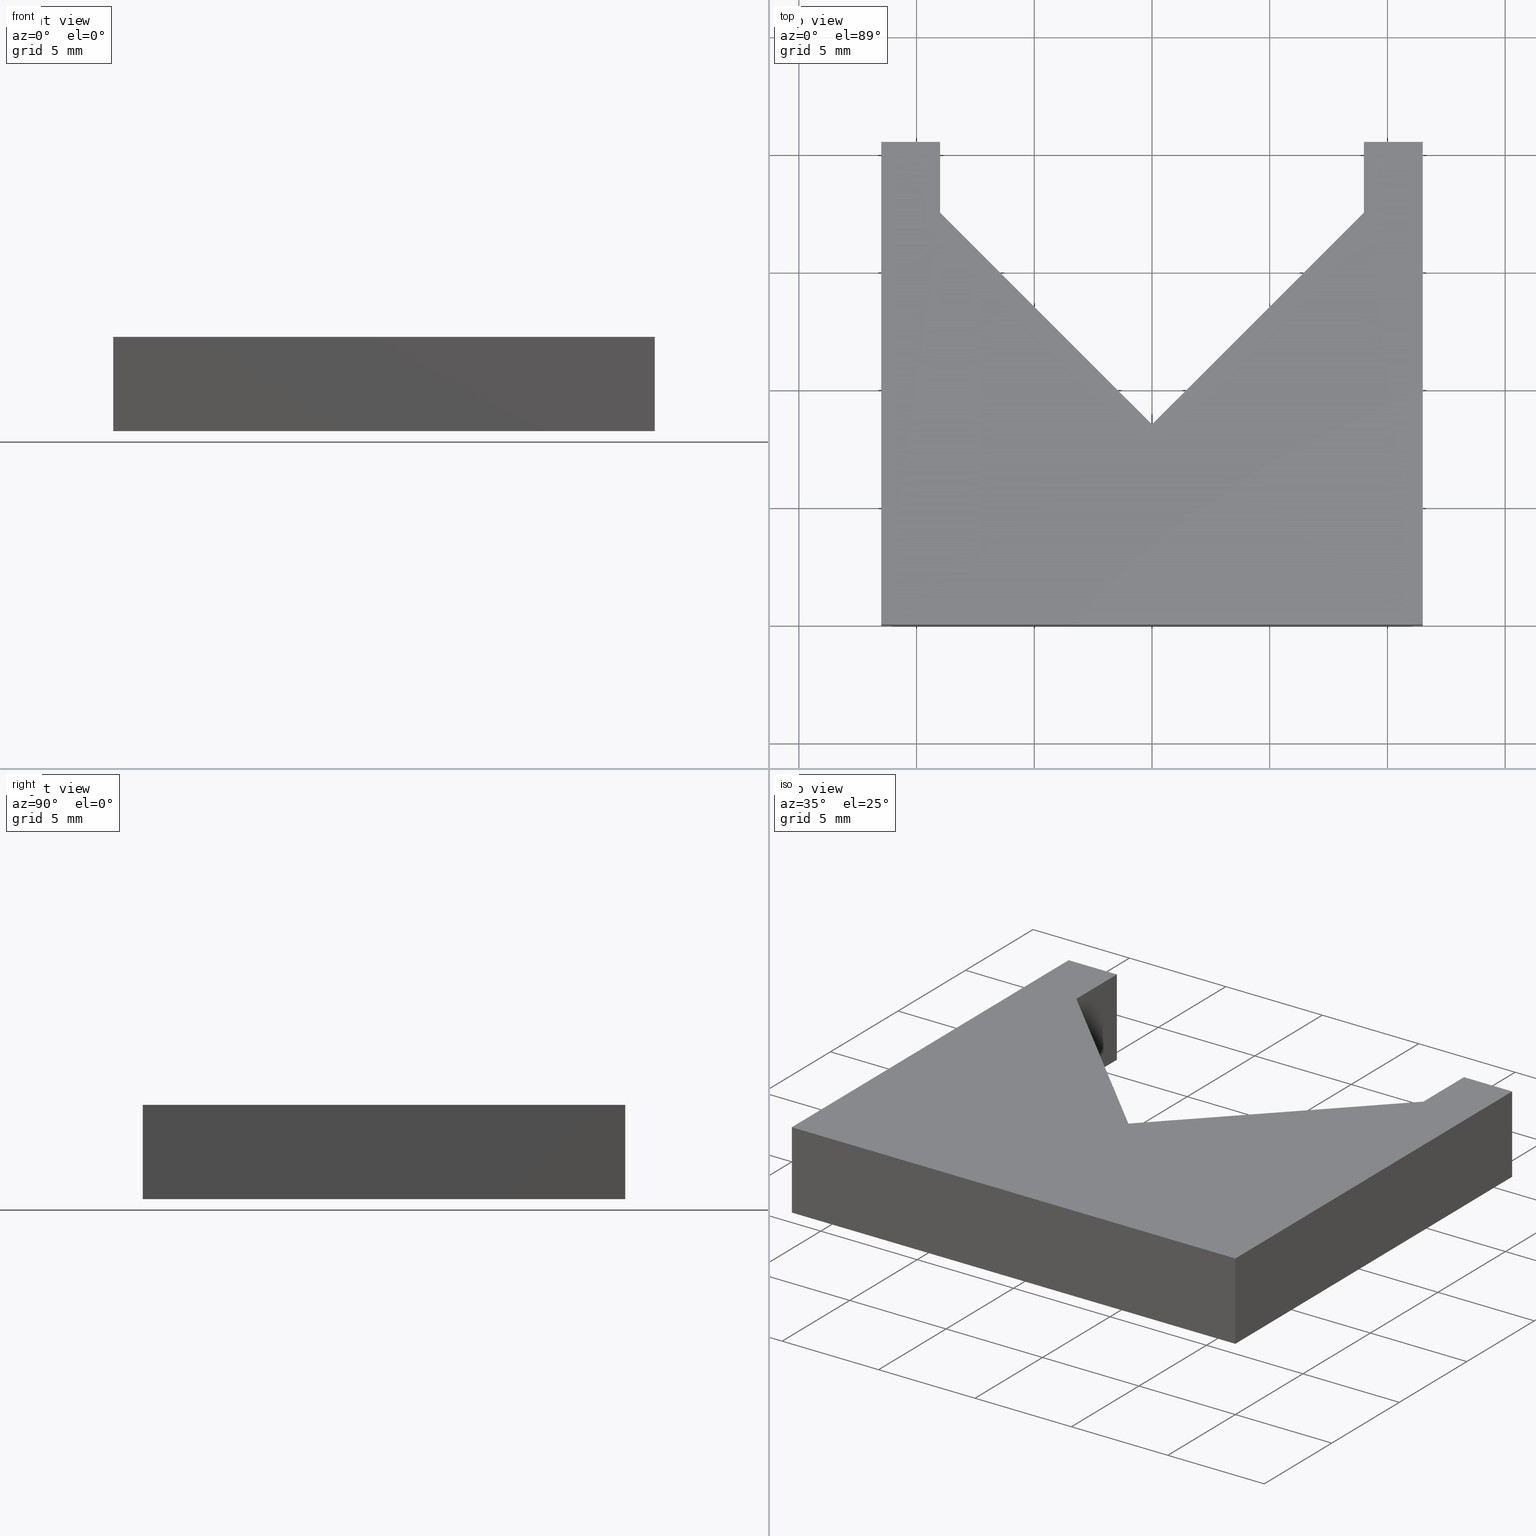
[diagram: canonical four-view strip — front | top / right | iso, engineering-drawing reading convention]
A machine part, canonical four-view strip (front | top / right | iso — engineering-drawing reading convention). The complete STEP part file that produces these views, byte-faithful:
ISO-10303-21;
HEADER;
/* Generated by software containing ST-Developer
 * from STEP Tools, Inc. (www.steptools.com) 
 */

FILE_DESCRIPTION(
/* description */ (''),
/* implementation_level */ '2;1');

FILE_NAME(
/* name */ 'E_3_01_10_18_00_WKZ-0157.stp',
/* time_stamp */ '2025-11-24T12:00:16+01:00',
/* author */ ('d.fischer'),
/* organization */ (''),
/* preprocessor_version */ 'ST-DEVELOPER v20',
/* originating_system */ 'Autodesk Inventor 2025',
/* authorisation */ '');

FILE_SCHEMA (('AUTOMOTIVE_DESIGN { 1 0 10303 214 3 1 1 }'));
ENDSEC;

DATA;
#10=MECHANICAL_DESIGN_GEOMETRIC_PRESENTATION_REPRESENTATION('',(#14,#15),
#358);
#11=SHAPE_REPRESENTATION_RELATIONSHIP('SRR','None',#365,#12);
#12=ADVANCED_BREP_SHAPE_REPRESENTATION('',(#13),#357);
#13=MANIFOLD_SOLID_BREP('Volumenk\X\F6rper1',#213);
#14=STYLED_ITEM('',(#375),#207);
#15=STYLED_ITEM('',(#374),#13);
#16=FACE_OUTER_BOUND('',#27,.T.);
#17=FACE_OUTER_BOUND('',#28,.T.);
#18=FACE_OUTER_BOUND('',#29,.T.);
#19=FACE_OUTER_BOUND('',#30,.T.);
#20=FACE_OUTER_BOUND('',#31,.T.);
#21=FACE_OUTER_BOUND('',#32,.T.);
#22=FACE_OUTER_BOUND('',#33,.T.);
#23=FACE_OUTER_BOUND('',#34,.T.);
#24=FACE_OUTER_BOUND('',#35,.T.);
#25=FACE_OUTER_BOUND('',#36,.T.);
#26=FACE_OUTER_BOUND('',#37,.T.);
#27=EDGE_LOOP('',(#137,#138,#139,#140,#141,#142,#143,#144,#145));
#28=EDGE_LOOP('',(#146,#147,#148,#149));
#29=EDGE_LOOP('',(#150,#151,#152,#153));
#30=EDGE_LOOP('',(#154,#155,#156,#157));
#31=EDGE_LOOP('',(#158,#159,#160,#161));
#32=EDGE_LOOP('',(#162,#163,#164,#165));
#33=EDGE_LOOP('',(#166,#167,#168,#169));
#34=EDGE_LOOP('',(#170,#171,#172,#173));
#35=EDGE_LOOP('',(#174,#175,#176,#177));
#36=EDGE_LOOP('',(#178,#179,#180,#181));
#37=EDGE_LOOP('',(#182,#183,#184,#185,#186,#187,#188,#189,#190));
#38=LINE('',#302,#65);
#39=LINE('',#304,#66);
#40=LINE('',#306,#67);
#41=LINE('',#308,#68);
#42=LINE('',#310,#69);
#43=LINE('',#312,#70);
#44=LINE('',#314,#71);
#45=LINE('',#316,#72);
#46=LINE('',#317,#73);
#47=LINE('',#321,#74);
#48=LINE('',#322,#75);
#49=LINE('',#323,#76);
#50=LINE('',#326,#77);
#51=LINE('',#327,#78);
#52=LINE('',#330,#79);
#53=LINE('',#331,#80);
#54=LINE('',#334,#81);
#55=LINE('',#335,#82);
#56=LINE('',#338,#83);
#57=LINE('',#339,#84);
#58=LINE('',#342,#85);
#59=LINE('',#343,#86);
#60=LINE('',#346,#87);
#61=LINE('',#347,#88);
#62=LINE('',#350,#89);
#63=LINE('',#351,#90);
#64=LINE('',#353,#91);
#65=VECTOR('',#251,10.);
#66=VECTOR('',#252,10.);
#67=VECTOR('',#253,10.);
#68=VECTOR('',#254,10.);
#69=VECTOR('',#255,10.);
#70=VECTOR('',#256,10.);
#71=VECTOR('',#257,10.);
#72=VECTOR('',#258,10.);
#73=VECTOR('',#259,10.);
#74=VECTOR('',#262,10.);
#75=VECTOR('',#263,10.);
#76=VECTOR('',#264,10.);
#77=VECTOR('',#267,10.);
#78=VECTOR('',#268,10.);
#79=VECTOR('',#271,10.);
#80=VECTOR('',#272,10.);
#81=VECTOR('',#275,10.);
#82=VECTOR('',#276,10.);
#83=VECTOR('',#279,10.);
#84=VECTOR('',#280,10.);
#85=VECTOR('',#283,10.);
#86=VECTOR('',#284,10.);
#87=VECTOR('',#287,10.);
#88=VECTOR('',#288,10.);
#89=VECTOR('',#291,10.);
#90=VECTOR('',#292,10.);
#91=VECTOR('',#295,10.);
#92=VERTEX_POINT('',#300);
#93=VERTEX_POINT('',#301);
#94=VERTEX_POINT('',#303);
#95=VERTEX_POINT('',#305);
#96=VERTEX_POINT('',#307);
#97=VERTEX_POINT('',#309);
#98=VERTEX_POINT('',#311);
#99=VERTEX_POINT('',#313);
#100=VERTEX_POINT('',#315);
#101=VERTEX_POINT('',#319);
#102=VERTEX_POINT('',#320);
#103=VERTEX_POINT('',#325);
#104=VERTEX_POINT('',#329);
#105=VERTEX_POINT('',#333);
#106=VERTEX_POINT('',#337);
#107=VERTEX_POINT('',#341);
#108=VERTEX_POINT('',#345);
#109=VERTEX_POINT('',#349);
#110=EDGE_CURVE('',#92,#93,#38,.T.);
#111=EDGE_CURVE('',#94,#92,#39,.T.);
#112=EDGE_CURVE('',#95,#94,#40,.T.);
#113=EDGE_CURVE('',#96,#95,#41,.T.);
#114=EDGE_CURVE('',#97,#96,#42,.T.);
#115=EDGE_CURVE('',#98,#97,#43,.T.);
#116=EDGE_CURVE('',#99,#98,#44,.T.);
#117=EDGE_CURVE('',#100,#99,#45,.T.);
#118=EDGE_CURVE('',#93,#100,#46,.T.);
#119=EDGE_CURVE('',#101,#102,#47,.T.);
#120=EDGE_CURVE('',#95,#102,#48,.T.);
#121=EDGE_CURVE('',#101,#94,#49,.T.);
#122=EDGE_CURVE('',#102,#103,#50,.T.);
#123=EDGE_CURVE('',#96,#103,#51,.T.);
#124=EDGE_CURVE('',#103,#104,#52,.T.);
#125=EDGE_CURVE('',#97,#104,#53,.T.);
#126=EDGE_CURVE('',#104,#105,#54,.T.);
#127=EDGE_CURVE('',#98,#105,#55,.T.);
#128=EDGE_CURVE('',#105,#106,#56,.T.);
#129=EDGE_CURVE('',#99,#106,#57,.T.);
#130=EDGE_CURVE('',#106,#107,#58,.T.);
#131=EDGE_CURVE('',#100,#107,#59,.T.);
#132=EDGE_CURVE('',#107,#108,#60,.T.);
#133=EDGE_CURVE('',#93,#108,#61,.T.);
#134=EDGE_CURVE('',#108,#109,#62,.T.);
#135=EDGE_CURVE('',#92,#109,#63,.T.);
#136=EDGE_CURVE('',#109,#101,#64,.T.);
#137=ORIENTED_EDGE('',*,*,#110,.F.);
#138=ORIENTED_EDGE('',*,*,#111,.F.);
#139=ORIENTED_EDGE('',*,*,#112,.F.);
#140=ORIENTED_EDGE('',*,*,#113,.F.);
#141=ORIENTED_EDGE('',*,*,#114,.F.);
#142=ORIENTED_EDGE('',*,*,#115,.F.);
#143=ORIENTED_EDGE('',*,*,#116,.F.);
#144=ORIENTED_EDGE('',*,*,#117,.F.);
#145=ORIENTED_EDGE('',*,*,#118,.F.);
#146=ORIENTED_EDGE('',*,*,#119,.T.);
#147=ORIENTED_EDGE('',*,*,#120,.F.);
#148=ORIENTED_EDGE('',*,*,#112,.T.);
#149=ORIENTED_EDGE('',*,*,#121,.F.);
#150=ORIENTED_EDGE('',*,*,#122,.T.);
#151=ORIENTED_EDGE('',*,*,#123,.F.);
#152=ORIENTED_EDGE('',*,*,#113,.T.);
#153=ORIENTED_EDGE('',*,*,#120,.T.);
#154=ORIENTED_EDGE('',*,*,#124,.T.);
#155=ORIENTED_EDGE('',*,*,#125,.F.);
#156=ORIENTED_EDGE('',*,*,#114,.T.);
#157=ORIENTED_EDGE('',*,*,#123,.T.);
#158=ORIENTED_EDGE('',*,*,#126,.T.);
#159=ORIENTED_EDGE('',*,*,#127,.F.);
#160=ORIENTED_EDGE('',*,*,#115,.T.);
#161=ORIENTED_EDGE('',*,*,#125,.T.);
#162=ORIENTED_EDGE('',*,*,#128,.T.);
#163=ORIENTED_EDGE('',*,*,#129,.F.);
#164=ORIENTED_EDGE('',*,*,#116,.T.);
#165=ORIENTED_EDGE('',*,*,#127,.T.);
#166=ORIENTED_EDGE('',*,*,#130,.T.);
#167=ORIENTED_EDGE('',*,*,#131,.F.);
#168=ORIENTED_EDGE('',*,*,#117,.T.);
#169=ORIENTED_EDGE('',*,*,#129,.T.);
#170=ORIENTED_EDGE('',*,*,#132,.T.);
#171=ORIENTED_EDGE('',*,*,#133,.F.);
#172=ORIENTED_EDGE('',*,*,#118,.T.);
#173=ORIENTED_EDGE('',*,*,#131,.T.);
#174=ORIENTED_EDGE('',*,*,#134,.T.);
#175=ORIENTED_EDGE('',*,*,#135,.F.);
#176=ORIENTED_EDGE('',*,*,#110,.T.);
#177=ORIENTED_EDGE('',*,*,#133,.T.);
#178=ORIENTED_EDGE('',*,*,#136,.T.);
#179=ORIENTED_EDGE('',*,*,#121,.T.);
#180=ORIENTED_EDGE('',*,*,#111,.T.);
#181=ORIENTED_EDGE('',*,*,#135,.T.);
#182=ORIENTED_EDGE('',*,*,#119,.F.);
#183=ORIENTED_EDGE('',*,*,#136,.F.);
#184=ORIENTED_EDGE('',*,*,#134,.F.);
#185=ORIENTED_EDGE('',*,*,#132,.F.);
#186=ORIENTED_EDGE('',*,*,#130,.F.);
#187=ORIENTED_EDGE('',*,*,#128,.F.);
#188=ORIENTED_EDGE('',*,*,#126,.F.);
#189=ORIENTED_EDGE('',*,*,#124,.F.);
#190=ORIENTED_EDGE('',*,*,#122,.F.);
#191=PLANE('',#236);
#192=PLANE('',#237);
#193=PLANE('',#238);
#194=PLANE('',#239);
#195=PLANE('',#240);
#196=PLANE('',#241);
#197=PLANE('',#242);
#198=PLANE('',#243);
#199=PLANE('',#244);
#200=PLANE('',#245);
#201=PLANE('',#246);
#202=ADVANCED_FACE('',(#16),#191,.F.);
#203=ADVANCED_FACE('',(#17),#192,.T.);
#204=ADVANCED_FACE('',(#18),#193,.T.);
#205=ADVANCED_FACE('',(#19),#194,.T.);
#206=ADVANCED_FACE('',(#20),#195,.T.);
#207=ADVANCED_FACE('',(#21),#196,.T.);
#208=ADVANCED_FACE('',(#22),#197,.T.);
#209=ADVANCED_FACE('',(#23),#198,.T.);
#210=ADVANCED_FACE('',(#24),#199,.T.);
#211=ADVANCED_FACE('',(#25),#200,.T.);
#212=ADVANCED_FACE('',(#26),#201,.T.);
#213=CLOSED_SHELL('',(#202,#203,#204,#205,#206,#207,#208,#209,#210,#211,
#212));
#214=DERIVED_UNIT_ELEMENT(#217,1.);
#215=DERIVED_UNIT_ELEMENT(#360,-3.);
#216=DIMENSIONAL_EXPONENTS(0.,1.,0.,0.,0.,0.,0.);
#217=(
CONVERSION_BASED_UNIT('gram',#219)
MASS_UNIT()
NAMED_UNIT(#216)
);
#218=(
MASS_UNIT()
NAMED_UNIT(*)
SI_UNIT(.KILO.,.GRAM.)
);
#219=MASS_MEASURE_WITH_UNIT(MASS_MEASURE(0.001),#218);
#220=DERIVED_UNIT((#214,#215));
#221=MEASURE_REPRESENTATION_ITEM('density measure',
POSITIVE_RATIO_MEASURE(8.03),#220);
#222=PROPERTY_DEFINITION_REPRESENTATION(#227,#224);
#223=PROPERTY_DEFINITION_REPRESENTATION(#228,#225);
#224=REPRESENTATION('material name',(#226),#357);
#225=REPRESENTATION('density',(#221),#357);
#226=DESCRIPTIVE_REPRESENTATION_ITEM('1.4301','1.4301');
#227=PROPERTY_DEFINITION('material property','material name',#367);
#228=PROPERTY_DEFINITION('material property','density of part',#367);
#229=DATE_TIME_ROLE('creation_date');
#230=APPLIED_DATE_AND_TIME_ASSIGNMENT(#231,#229,(#367));
#231=DATE_AND_TIME(#232,#233);
#232=CALENDAR_DATE(2011,17,10);
#233=LOCAL_TIME(0,0,0.,#234);
#234=COORDINATED_UNIVERSAL_TIME_OFFSET(0,0,.BEHIND.);
#235=AXIS2_PLACEMENT_3D('',#298,#247,#248);
#236=AXIS2_PLACEMENT_3D('',#299,#249,#250);
#237=AXIS2_PLACEMENT_3D('',#318,#260,#261);
#238=AXIS2_PLACEMENT_3D('',#324,#265,#266);
#239=AXIS2_PLACEMENT_3D('',#328,#269,#270);
#240=AXIS2_PLACEMENT_3D('',#332,#273,#274);
#241=AXIS2_PLACEMENT_3D('',#336,#277,#278);
#242=AXIS2_PLACEMENT_3D('',#340,#281,#282);
#243=AXIS2_PLACEMENT_3D('',#344,#285,#286);
#244=AXIS2_PLACEMENT_3D('',#348,#289,#290);
#245=AXIS2_PLACEMENT_3D('',#352,#293,#294);
#246=AXIS2_PLACEMENT_3D('',#354,#296,#297);
#247=DIRECTION('axis',(0.,0.,1.));
#248=DIRECTION('refdir',(1.,0.,0.));
#249=DIRECTION('center_axis',(0.,0.,1.));
#250=DIRECTION('ref_axis',(1.,0.,0.));
#251=DIRECTION('',(0.,1.,0.));
#252=DIRECTION('',(-0.707106781186547,0.707106781186548,0.));
#253=DIRECTION('',(-0.707106781186547,-0.707106781186548,0.));
#254=DIRECTION('',(0.,-1.,0.));
#255=DIRECTION('',(-1.,1.77635683940025E-15,0.));
#256=DIRECTION('',(0.,1.,0.));
#257=DIRECTION('',(1.,0.,0.));
#258=DIRECTION('',(0.,-1.,0.));
#259=DIRECTION('',(-1.,-1.77635683940025E-15,0.));
#260=DIRECTION('center_axis',(-0.707106781186548,0.707106781186547,0.));
#261=DIRECTION('ref_axis',(0.,0.,1.));
#262=DIRECTION('',(0.707106781186547,0.707106781186548,0.));
#263=DIRECTION('',(0.,0.,1.));
#264=DIRECTION('',(0.,0.,-1.));
#265=DIRECTION('center_axis',(-1.,0.,0.));
#266=DIRECTION('ref_axis',(0.,0.,1.));
#267=DIRECTION('',(0.,1.,0.));
#268=DIRECTION('',(0.,0.,1.));
#269=DIRECTION('center_axis',(1.77635683940025E-15,1.,0.));
#270=DIRECTION('ref_axis',(0.,0.,1.));
#271=DIRECTION('',(1.,-1.77635683940025E-15,0.));
#272=DIRECTION('',(0.,0.,1.));
#273=DIRECTION('center_axis',(1.,0.,0.));
#274=DIRECTION('ref_axis',(0.,0.,-1.));
#275=DIRECTION('',(0.,-1.,0.));
#276=DIRECTION('',(0.,0.,1.));
#277=DIRECTION('center_axis',(0.,-1.,0.));
#278=DIRECTION('ref_axis',(0.,0.,-1.));
#279=DIRECTION('',(-1.,0.,0.));
#280=DIRECTION('',(0.,0.,1.));
#281=DIRECTION('center_axis',(-1.,0.,0.));
#282=DIRECTION('ref_axis',(0.,0.,1.));
#283=DIRECTION('',(0.,1.,0.));
#284=DIRECTION('',(0.,0.,1.));
#285=DIRECTION('center_axis',(-1.77635683940025E-15,1.,0.));
#286=DIRECTION('ref_axis',(0.,0.,1.));
#287=DIRECTION('',(1.,1.77635683940025E-15,0.));
#288=DIRECTION('',(0.,0.,1.));
#289=DIRECTION('center_axis',(1.,0.,0.));
#290=DIRECTION('ref_axis',(0.,0.,-1.));
#291=DIRECTION('',(0.,-1.,0.));
#292=DIRECTION('',(0.,0.,1.));
#293=DIRECTION('center_axis',(0.707106781186548,0.707106781186547,0.));
#294=DIRECTION('ref_axis',(0.,0.,-1.));
#295=DIRECTION('',(0.707106781186547,-0.707106781186548,0.));
#296=DIRECTION('center_axis',(0.,0.,1.));
#297=DIRECTION('ref_axis',(1.,0.,0.));
#298=CARTESIAN_POINT('',(0.,0.,0.));
#299=CARTESIAN_POINT('Origin',(-3.81639164714898E-16,9.63284896011826,-2.));
#300=CARTESIAN_POINT('',(-9.,17.5,-2.));
#301=CARTESIAN_POINT('',(-9.,20.5,-2.));
#302=CARTESIAN_POINT('',(-9.,17.5,-2.));
#303=CARTESIAN_POINT('',(0.,8.5,-2.));
#304=CARTESIAN_POINT('',(0.,8.5,-2.));
#305=CARTESIAN_POINT('',(9.,17.5,-2.));
#306=CARTESIAN_POINT('',(9.,17.5,-2.));
#307=CARTESIAN_POINT('',(9.,20.5,-2.));
#308=CARTESIAN_POINT('',(9.,20.5,-2.));
#309=CARTESIAN_POINT('',(11.5,20.5,-2.));
#310=CARTESIAN_POINT('',(11.5,20.5,-2.));
#311=CARTESIAN_POINT('',(11.5,0.,-2.));
#312=CARTESIAN_POINT('',(11.5,0.,-2.));
#313=CARTESIAN_POINT('',(-11.5,0.,-2.));
#314=CARTESIAN_POINT('',(-11.5,0.,-2.));
#315=CARTESIAN_POINT('',(-11.5,20.5,-2.));
#316=CARTESIAN_POINT('',(-11.5,20.5,-2.));
#317=CARTESIAN_POINT('',(-9.,20.5,-2.));
#318=CARTESIAN_POINT('Origin',(0.,8.5,0.));
#319=CARTESIAN_POINT('',(0.,8.5,2.));
#320=CARTESIAN_POINT('',(9.,17.5,2.));
#321=CARTESIAN_POINT('',(9.,17.5,2.));
#322=CARTESIAN_POINT('',(9.,17.5,0.));
#323=CARTESIAN_POINT('',(0.,8.5,0.));
#324=CARTESIAN_POINT('Origin',(9.,17.5,0.));
#325=CARTESIAN_POINT('',(9.,20.5,2.));
#326=CARTESIAN_POINT('',(9.,20.5,2.));
#327=CARTESIAN_POINT('',(9.,20.5,0.));
#328=CARTESIAN_POINT('Origin',(9.,20.5,0.));
#329=CARTESIAN_POINT('',(11.5,20.5,2.));
#330=CARTESIAN_POINT('',(11.5,20.5,2.));
#331=CARTESIAN_POINT('',(11.5,20.5,0.));
#332=CARTESIAN_POINT('Origin',(11.5,20.5,0.));
#333=CARTESIAN_POINT('',(11.5,0.,2.));
#334=CARTESIAN_POINT('',(11.5,0.,2.));
#335=CARTESIAN_POINT('',(11.5,0.,0.));
#336=CARTESIAN_POINT('Origin',(11.5,0.,0.));
#337=CARTESIAN_POINT('',(-11.5,0.,2.));
#338=CARTESIAN_POINT('',(-11.5,0.,2.));
#339=CARTESIAN_POINT('',(-11.5,0.,0.));
#340=CARTESIAN_POINT('Origin',(-11.5,0.,0.));
#341=CARTESIAN_POINT('',(-11.5,20.5,2.));
#342=CARTESIAN_POINT('',(-11.5,20.5,2.));
#343=CARTESIAN_POINT('',(-11.5,20.5,0.));
#344=CARTESIAN_POINT('Origin',(-11.5,20.5,0.));
#345=CARTESIAN_POINT('',(-9.,20.5,2.));
#346=CARTESIAN_POINT('',(-9.,20.5,2.));
#347=CARTESIAN_POINT('',(-9.,20.5,0.));
#348=CARTESIAN_POINT('Origin',(-9.,20.5,0.));
#349=CARTESIAN_POINT('',(-9.,17.5,2.));
#350=CARTESIAN_POINT('',(-9.,17.5,2.));
#351=CARTESIAN_POINT('',(-9.,17.5,0.));
#352=CARTESIAN_POINT('Origin',(-9.,17.5,0.));
#353=CARTESIAN_POINT('',(0.,8.5,2.));
#354=CARTESIAN_POINT('Origin',(-1.38777878078145E-16,9.63284896011826,2.));
#355=UNCERTAINTY_MEASURE_WITH_UNIT(LENGTH_MEASURE(0.01),#359,
'DISTANCE_ACCURACY_VALUE',
'Maximum model space distance between geometric entities at asserted c
onnectivities');
#356=UNCERTAINTY_MEASURE_WITH_UNIT(LENGTH_MEASURE(0.01),#359,
'DISTANCE_ACCURACY_VALUE',
'Maximum model space distance between geometric entities at asserted c
onnectivities');
#357=(
GEOMETRIC_REPRESENTATION_CONTEXT(3)
GLOBAL_UNCERTAINTY_ASSIGNED_CONTEXT((#355))
GLOBAL_UNIT_ASSIGNED_CONTEXT((#359,#361,#362))
REPRESENTATION_CONTEXT('','3D')
);
#358=(
GEOMETRIC_REPRESENTATION_CONTEXT(3)
GLOBAL_UNCERTAINTY_ASSIGNED_CONTEXT((#356))
GLOBAL_UNIT_ASSIGNED_CONTEXT((#359,#361,#362))
REPRESENTATION_CONTEXT('','3D')
);
#359=(
LENGTH_UNIT()
NAMED_UNIT(*)
SI_UNIT(.MILLI.,.METRE.)
);
#360=(
LENGTH_UNIT()
NAMED_UNIT(*)
SI_UNIT(.CENTI.,.METRE.)
);
#361=(
NAMED_UNIT(*)
PLANE_ANGLE_UNIT()
SI_UNIT($,.RADIAN.)
);
#362=(
NAMED_UNIT(*)
SI_UNIT($,.STERADIAN.)
SOLID_ANGLE_UNIT()
);
#363=SHAPE_DEFINITION_REPRESENTATION(#364,#365);
#364=PRODUCT_DEFINITION_SHAPE('',$,#367);
#365=SHAPE_REPRESENTATION('',(#235),#357);
#366=PRODUCT_DEFINITION_CONTEXT('part definition',#371,'design');
#367=PRODUCT_DEFINITION('WKZ-0157','E_3_01_10_18_00_WKZ-0157',#368,#366);
#368=PRODUCT_DEFINITION_FORMATION('',$,#373);
#369=PRODUCT_RELATED_PRODUCT_CATEGORY('E_3_01_10_18_00_WKZ-0157',
'E_3_01_10_18_00_WKZ-0157',(#373));
#370=APPLICATION_PROTOCOL_DEFINITION('international standard',
'automotive_design',2009,#371);
#371=APPLICATION_CONTEXT(
'Core Data for Automotive Mechanical Design Process');
#372=PRODUCT_CONTEXT('part definition',#371,'mechanical');
#373=PRODUCT('WKZ-0157','E_3_01_10_18_00_WKZ-0157',$,(#372));
#374=PRESENTATION_STYLE_ASSIGNMENT((#376));
#375=PRESENTATION_STYLE_ASSIGNMENT((#377));
#376=SURFACE_STYLE_USAGE(.BOTH.,#380);
#377=SURFACE_STYLE_USAGE(.BOTH.,#381);
#378=SURFACE_STYLE_RENDERING_WITH_PROPERTIES($,#388,(#379));
#379=SURFACE_STYLE_TRANSPARENT(0.);
#380=SURFACE_SIDE_STYLE('',(#382,#378));
#381=SURFACE_SIDE_STYLE('',(#383));
#382=SURFACE_STYLE_FILL_AREA(#384);
#383=SURFACE_STYLE_FILL_AREA(#385);
#384=FILL_AREA_STYLE('',(#386));
#385=FILL_AREA_STYLE('',(#387));
#386=FILL_AREA_STYLE_COLOUR('',#388);
#387=FILL_AREA_STYLE_COLOUR('',#389);
#388=COLOUR_RGB('',0.92156862745098,0.92156862745098,0.92156862745098);
#389=COLOUR_RGB('',0.16078431372549,0.16078431372549,0.16078431372549);
ENDSEC;
END-ISO-10303-21;
